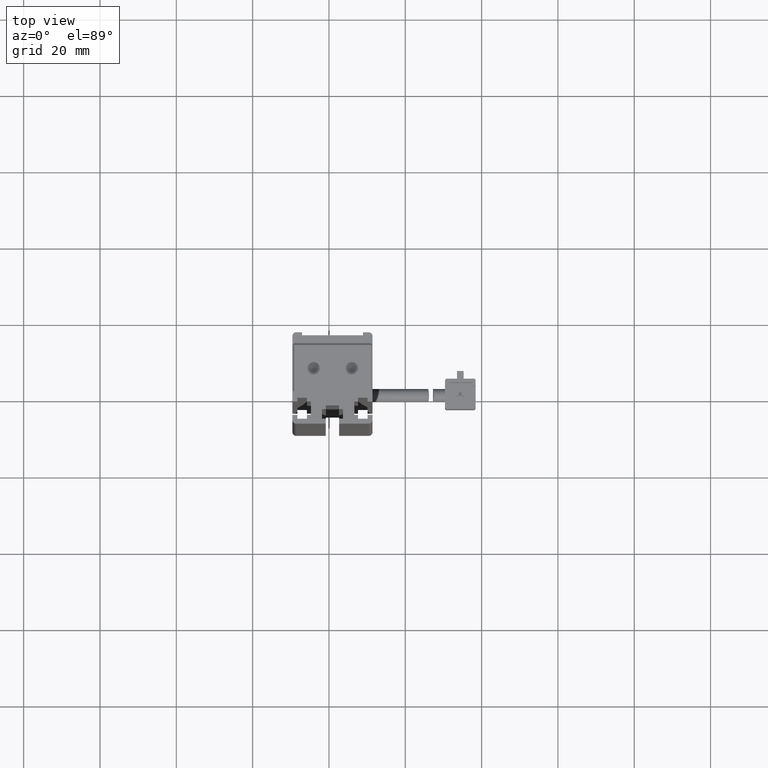
[diagram: clean part render]
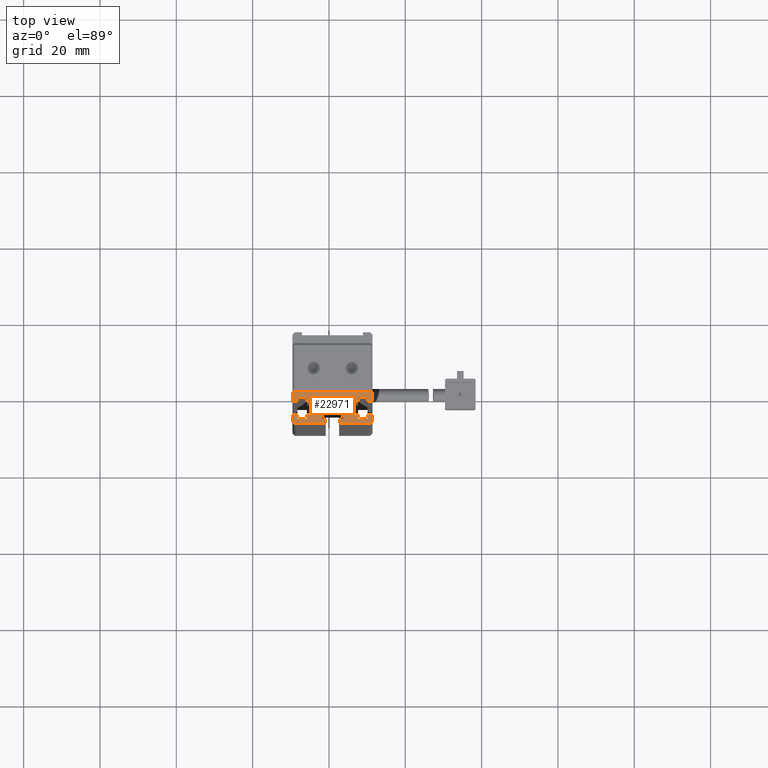
[diagram: same view with one face highlighted and labeled with its STEP entity id]
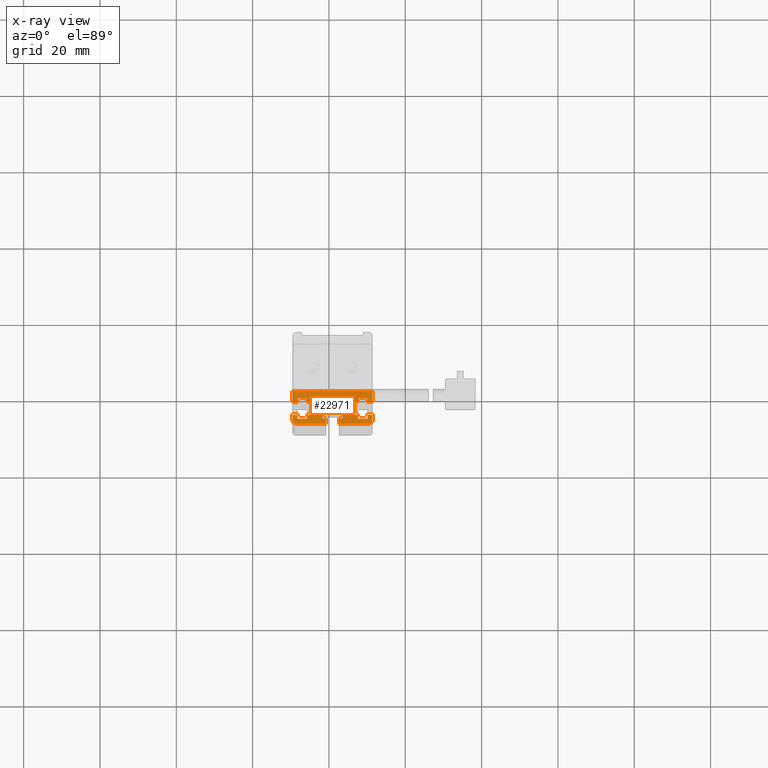
[diagram: x-ray of the same camera — body ghosted, the highlighted face saturated]
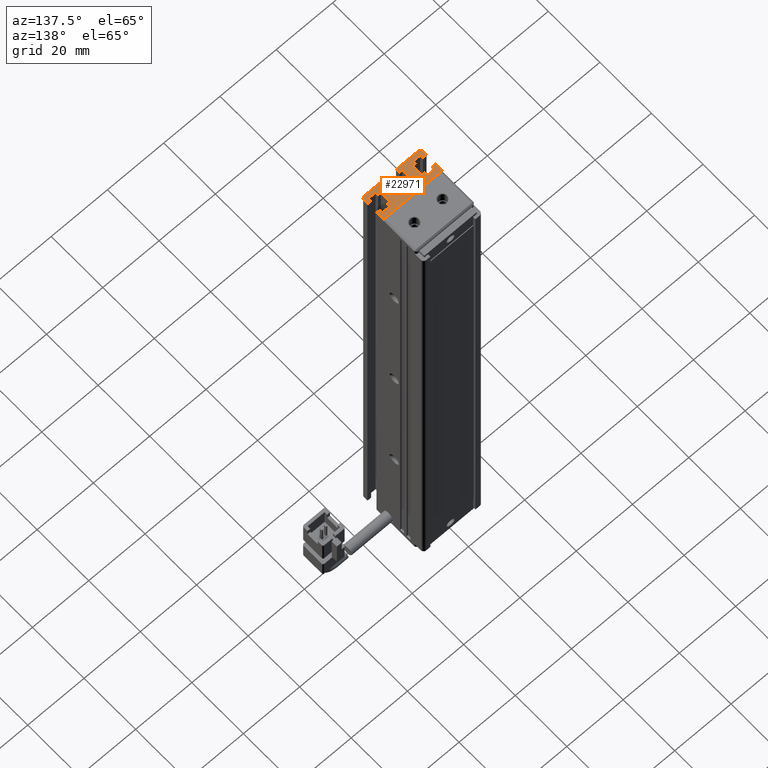
[diagram: same view with one face highlighted and labeled with its STEP entity id]
A machine part, top view. The second image highlights one B-rep face of the part: STEP entity #22971.
The next image is the same camera in x-ray: the body ghosted, the highlighted face saturated — about 0% of this face is hidden behind the body in this view.
A second angle (auxiliary view) of the same face is appended — the face is thin or edge-on in the first view.
In plain terms, the highlighted planar face has unit normal (-0, 0, 1).
Its self-contained STEP definition (entity closure, byte-faithful):
#81 = VECTOR ( 'NONE', #12525, 1000.000000000000000 ) ;
#255 = ORIENTED_EDGE ( 'NONE', *, *, #516, .F. ) ;
#405 = VECTOR ( 'NONE', #27981, 1000.000000000000000 ) ;
#461 = CARTESIAN_POINT ( 'NONE',  ( 46.62537974683541400, 13.29073232304837200, -23.00000000000000700 ) ) ;
#516 = EDGE_CURVE ( 'NONE', #40643, #28890, #14226, .T. ) ;
#569 = VERTEX_POINT ( 'NONE', #39045 ) ;
#603 = CARTESIAN_POINT ( 'NONE',  ( 40.92537974683542500, 16.79073232304837400, -23.00000000000000700 ) ) ;
#746 = VECTOR ( 'NONE', #36741, 1000.000000000000000 ) ;
#994 = VERTEX_POINT ( 'NONE', #19793 ) ;
#1074 = VERTEX_POINT ( 'NONE', #1736 ) ;
#1141 = LINE ( 'NONE', #33958, #48554 ) ;
#1291 = LINE ( 'NONE', #4426, #26485 ) ;
#1339 = LINE ( 'NONE', #38464, #3724 ) ;
#1553 = LINE ( 'NONE', #44837, #22121 ) ;
#1585 = CARTESIAN_POINT ( 'NONE',  ( 39.17537974683542500, 14.79073232304837000, -23.00000000000000700 ) ) ;
#1617 = LINE ( 'NONE', #45082, #22815 ) ;
#1646 = ORIENTED_EDGE ( 'NONE', *, *, #32442, .T. ) ;
#1736 = CARTESIAN_POINT ( 'NONE',  ( 39.17537974683542500, 10.99073232304837000, -22.99999999999999300 ) ) ;
#1949 = VECTOR ( 'NONE', #15186, 1000.000000000000000 ) ;
#2012 = LINE ( 'NONE', #27708, #28386 ) ;
#2191 = ORIENTED_EDGE ( 'NONE', *, *, #17486, .F. ) ;
#2255 = VERTEX_POINT ( 'NONE', #13155 ) ;
#2545 = ORIENTED_EDGE ( 'NONE', *, *, #20505, .T. ) ;
#2726 = CARTESIAN_POINT ( 'NONE',  ( 43.67537974683542500, 7.083797468354437600, -23.00000000000000700 ) ) ;
#2841 = CARTESIAN_POINT ( 'NONE',  ( 35.22537974683543600, 7.083797468354437600, -23.00000000000000700 ) ) ;
#2876 = CARTESIAN_POINT ( 'NONE',  ( 42.67537974683542500, 14.79073232304837000, -23.00000000000000700 ) ) ;
#3158 = ORIENTED_EDGE ( 'NONE', *, *, #29188, .F. ) ;
#3289 = EDGE_CURVE ( 'NONE', #34741, #38159, #41148, .T. ) ;
#3335 = VECTOR ( 'NONE', #5353, 1000.000000000000000 ) ;
#3464 = VERTEX_POINT ( 'NONE', #41321 ) ;
#3661 = VERTEX_POINT ( 'NONE', #31108 ) ;
#3724 = VECTOR ( 'NONE', #22821, 1000.000000000000000 ) ;
#3887 = LINE ( 'NONE', #43982, #43107 ) ;
#3929 = VERTEX_POINT ( 'NONE', #2876 ) ;
#4144 = EDGE_CURVE ( 'NONE', #7402, #35808, #28093, .T. ) ;
#4426 = CARTESIAN_POINT ( 'NONE',  ( 40.92537974683542500, 17.79073232304837000, -23.00000000000000700 ) ) ;
#4937 = LINE ( 'NONE', #5234, #31323 ) ;
#5234 = CARTESIAN_POINT ( 'NONE',  ( 42.67537974683542500, 7.083797468354437600, -23.00000000000000700 ) ) ;
#5353 = DIRECTION ( 'NONE',  ( -0.0000000000000000000, -1.000000000000000000, -0.0000000000000000000 ) ) ;
#5370 = LINE ( 'NONE', #38183, #44006 ) ;
#5428 = EDGE_CURVE ( 'NONE', #15275, #11393, #13526, .T. ) ;
#5445 = DIRECTION ( 'NONE',  ( -1.000000000000000000, 1.734723475976807100E-015, -0.0000000000000000000 ) ) ;
#5455 = DIRECTION ( 'NONE',  ( 1.000000000000000000, 0.0000000000000000000, 0.0000000000000000000 ) ) ;
#5565 = CARTESIAN_POINT ( 'NONE',  ( 31.72537974683542600, 16.79073232304837400, -22.99999999999999300 ) ) ;
#5787 = DIRECTION ( 'NONE',  ( 3.469446951953635100E-015, -1.000000000000000000, -0.0000000000000000000 ) ) ;
#5988 = ORIENTED_EDGE ( 'NONE', *, *, #38514, .T. ) ;
#6232 = CARTESIAN_POINT ( 'NONE',  ( 50.12537974683542800, 16.79073232304837000, -22.99999999999999300 ) ) ;
#6672 = CARTESIAN_POINT ( 'NONE',  ( 30.42537974683542100, 13.29073232304837200, -22.99999999999999300 ) ) ;
#6720 = DIRECTION ( 'NONE',  ( 3.469446951953607900E-015, 1.000000000000000000, -0.0000000000000000000 ) ) ;
#6740 = DIRECTION ( 'NONE',  ( 0.0000000000000000000, 1.000000000000000000, -0.0000000000000000000 ) ) ;
#6744 = EDGE_CURVE ( 'NONE', #3661, #33227, #12092, .T. ) ;
#6827 = CARTESIAN_POINT ( 'NONE',  ( 40.92537974683542500, 12.29073232304837200, -23.00000000000000700 ) ) ;
#7179 = VECTOR ( 'NONE', #27652, 1000.000000000000000 ) ;
#7245 = EDGE_CURVE ( 'NONE', #569, #25813, #38269, .T. ) ;
#7402 = VERTEX_POINT ( 'NONE', #35409 ) ;
#7619 = VERTEX_POINT ( 'NONE', #33253 ) ;
#7695 = CARTESIAN_POINT ( 'NONE',  ( 40.92537974683543900, 16.79073232304836000, -23.00000000000000700 ) ) ;
#7977 = CARTESIAN_POINT ( 'NONE',  ( 40.92537974683543900, 13.29073232304835500, -23.00000000000000700 ) ) ;
#8118 = DIRECTION ( 'NONE',  ( -1.000000000000000000, 0.0000000000000000000, 0.0000000000000000000 ) ) ;
#8128 = CARTESIAN_POINT ( 'NONE',  ( 34.22537974683543600, 16.79073232304837400, -23.00000000000000700 ) ) ;
#8168 = LINE ( 'NONE', #24782, #46750 ) ;
#8199 = CARTESIAN_POINT ( 'NONE',  ( 47.62537974683541400, 12.29073232304837200, -23.00000000000000700 ) ) ;
#8272 = LINE ( 'NONE', #2726, #31707 ) ;
#8360 = LINE ( 'NONE', #9200, #7179 ) ;
#8829 = EDGE_CURVE ( 'NONE', #25671, #1074, #8168, .T. ) ;
#8832 = CARTESIAN_POINT ( 'NONE',  ( 35.22537974683543600, 16.79073232304837400, -23.00000000000000700 ) ) ;
#8858 = ORIENTED_EDGE ( 'NONE', *, *, #24646, .T. ) ;
#9200 = CARTESIAN_POINT ( 'NONE',  ( 31.72537974683539000, 7.083797468354469600, -23.00000000000000700 ) ) ;
#9210 = ORIENTED_EDGE ( 'NONE', *, *, #5428, .T. ) ;
#9238 = AXIS2_PLACEMENT_3D ( 'NONE', #25258, #40277, #10593 ) ;
#9258 = DIRECTION ( 'NONE',  ( 1.000000000000000000, 0.0000000000000000000, 0.0000000000000000000 ) ) ;
#9264 = LINE ( 'NONE', #39534, #44327 ) ;
#9300 = ORIENTED_EDGE ( 'NONE', *, *, #4144, .F. ) ;
#9566 = CARTESIAN_POINT ( 'NONE',  ( 31.72537974683542600, 13.29073232304837200, -23.00000000000000700 ) ) ;
#9738 = CARTESIAN_POINT ( 'NONE',  ( 38.17537974683542500, 14.79073232304837000, -23.00000000000000700 ) ) ;
#9827 = VERTEX_POINT ( 'NONE', #1585 ) ;
#10593 = DIRECTION ( 'NONE',  ( 1.000000000000000000, 0.0000000000000000000, 0.0000000000000000000 ) ) ;
#10849 = VECTOR ( 'NONE', #40586, 1000.000000000000000 ) ;
#10948 = CARTESIAN_POINT ( 'NONE',  ( 39.17537974683542500, 15.79073232304837000, -23.00000000000000700 ) ) ;
#11073 = VECTOR ( 'NONE', #21737, 1000.000000000000000 ) ;
#11082 = CARTESIAN_POINT ( 'NONE',  ( 51.42537974683541800, 11.99073232304837000, -23.00000000000000700 ) ) ;
#11338 = LINE ( 'NONE', #2841, #746 ) ;
#11393 = VERTEX_POINT ( 'NONE', #8128 ) ;
#11470 = CIRCLE ( 'NONE', #26201, 1.000000000000000900 ) ;
#11551 = EDGE_CURVE ( 'NONE', #35808, #36503, #18804, .T. ) ;
#12092 = LINE ( 'NONE', #46653, #47755 ) ;
#12093 = CARTESIAN_POINT ( 'NONE',  ( 31.72537974683542600, 12.29073232304837200, -23.00000000000000700 ) ) ;
#12124 = EDGE_CURVE ( 'NONE', #39472, #29295, #45328, .T. ) ;
#12290 = VERTEX_POINT ( 'NONE', #461 ) ;
#12448 = VERTEX_POINT ( 'NONE', #38888 ) ;
#12491 = DIRECTION ( 'NONE',  ( 1.000000000000000000, 0.0000000000000000000, 0.0000000000000000000 ) ) ;
#12525 = DIRECTION ( 'NONE',  ( 1.000000000000000000, 0.0000000000000000000, 0.0000000000000000000 ) ) ;
#12588 = ORIENTED_EDGE ( 'NONE', *, *, #20875, .F. ) ;
#12777 = VECTOR ( 'NONE', #37389, 1000.000000000000000 ) ;
#12791 = EDGE_CURVE ( 'NONE', #25767, #34741, #46385, .T. ) ;
#12803 = DIRECTION ( 'NONE',  ( -0.0000000000000000000, -1.000000000000000000, -0.0000000000000000000 ) ) ;
#13155 = CARTESIAN_POINT ( 'NONE',  ( 43.67537974683542500, 14.79073232304837000, -23.00000000000000700 ) ) ;
#13204 = VECTOR ( 'NONE', #29493, 1000.000000000000000 ) ;
#13514 = DIRECTION ( 'NONE',  ( 1.000000000000000000, 0.0000000000000000000, -0.0000000000000000000 ) ) ;
#13526 = LINE ( 'NONE', #46487, #45042 ) ;
#13715 = VECTOR ( 'NONE', #32355, 1000.000000000000000 ) ;
#13977 = LINE ( 'NONE', #14855, #12777 ) ;
#14004 = EDGE_CURVE ( 'NONE', #29892, #40133, #29233, .T. ) ;
#14226 = LINE ( 'NONE', #38890, #18265 ) ;
#14504 = EDGE_CURVE ( 'NONE', #47638, #29295, #1553, .T. ) ;
#14658 = VERTEX_POINT ( 'NONE', #5565 ) ;
#14684 = VECTOR ( 'NONE', #6720, 1000.000000000000000 ) ;
#14829 = DIRECTION ( 'NONE',  ( -1.000000000000000000, -0.0000000000000000000, -0.0000000000000000000 ) ) ;
#14855 = CARTESIAN_POINT ( 'NONE',  ( 30.42537974683542100, 7.083797468354437600, -23.00000000000000700 ) ) ;
#14992 = LINE ( 'NONE', #29842, #25899 ) ;
#15157 = DIRECTION ( 'NONE',  ( 3.469446951953607900E-015, -1.000000000000000000, -0.0000000000000000000 ) ) ;
#15160 = ORIENTED_EDGE ( 'NONE', *, *, #46815, .T. ) ;
#15186 = DIRECTION ( 'NONE',  ( -1.000000000000000000, 2.602085213965210200E-015, -0.0000000000000000000 ) ) ;
#15206 = CARTESIAN_POINT ( 'NONE',  ( 51.42537974683541800, 19.49073232304837000, -22.99999999999999300 ) ) ;
#15275 = VERTEX_POINT ( 'NONE', #47201 ) ;
#15304 = LINE ( 'NONE', #23142, #27551 ) ;
#15354 = VECTOR ( 'NONE', #42382, 1000.000000000000000 ) ;
#15467 = ORIENTED_EDGE ( 'NONE', *, *, #3289, .T. ) ;
#15770 = VECTOR ( 'NONE', #47855, 1000.000000000000000 ) ;
#15835 = DIRECTION ( 'NONE',  ( 0.0000000000000000000, 1.000000000000000000, -0.0000000000000000000 ) ) ;
#16211 = ORIENTED_EDGE ( 'NONE', *, *, #23938, .T. ) ;
#16700 = DIRECTION ( 'NONE',  ( -1.000000000000000000, -0.0000000000000000000, -0.0000000000000000000 ) ) ;
#16915 = ORIENTED_EDGE ( 'NONE', *, *, #12791, .T. ) ;
#17251 = VECTOR ( 'NONE', #23589, 1000.000000000000000 ) ;
#17486 = EDGE_CURVE ( 'NONE', #3929, #41469, #20775, .T. ) ;
#17554 = DIRECTION ( 'NONE',  ( -1.000000000000000000, -0.0000000000000000000, -0.0000000000000000000 ) ) ;
#17591 = ORIENTED_EDGE ( 'NONE', *, *, #46315, .F. ) ;
#17680 = EDGE_CURVE ( 'NONE', #12290, #32899, #34223, .T. ) ;
#17951 = CARTESIAN_POINT ( 'NONE',  ( 50.12537974683544900, 7.083797468354469600, -23.00000000000000700 ) ) ;
#18265 = VECTOR ( 'NONE', #16700, 1000.000000000000000 ) ;
#18342 = LINE ( 'NONE', #603, #43453 ) ;
#18612 = LINE ( 'NONE', #35895, #405 ) ;
#18804 = LINE ( 'NONE', #39147, #39830 ) ;
#18850 = CARTESIAN_POINT ( 'NONE',  ( 47.62537974683541400, 13.29073232304837200, -23.00000000000000700 ) ) ;
#18989 = EDGE_CURVE ( 'NONE', #40643, #27003, #18612, .T. ) ;
#19086 = EDGE_CURVE ( 'NONE', #2255, #3929, #3887, .T. ) ;
#19270 = VECTOR ( 'NONE', #33354, 1000.000000000000000 ) ;
#19413 = ORIENTED_EDGE ( 'NONE', *, *, #44933, .T. ) ;
#19431 = CARTESIAN_POINT ( 'NONE',  ( 42.67537974683542500, 15.79073232304837000, -23.00000000000000700 ) ) ;
#19459 = VERTEX_POINT ( 'NONE', #8832 ) ;
#19671 = CARTESIAN_POINT ( 'NONE',  ( 40.92537974683541100, 13.29073232304835500, -23.00000000000000700 ) ) ;
#19793 = CARTESIAN_POINT ( 'NONE',  ( 38.17537974683542500, 12.29073232304837200, -23.00000000000000700 ) ) ;
#19879 = DIRECTION ( 'NONE',  ( -0.0000000000000000000, -0.0000000000000000000, -1.000000000000000000 ) ) ;
#19910 = EDGE_CURVE ( 'NONE', #28803, #25447, #2012, .T. ) ;
#20324 = CARTESIAN_POINT ( 'NONE',  ( 30.42537974683542500, 11.99073232304837000, -23.00000000000000700 ) ) ;
#20505 = EDGE_CURVE ( 'NONE', #3464, #15275, #1291, .T. ) ;
#20607 = EDGE_CURVE ( 'NONE', #14658, #3464, #8360, .T. ) ;
#20677 = CARTESIAN_POINT ( 'NONE',  ( 43.67537974683542500, 12.29073232304837200, -23.00000000000000700 ) ) ;
#20775 = LINE ( 'NONE', #37352, #10849 ) ;
#20875 = EDGE_CURVE ( 'NONE', #25671, #47638, #35820, .T. ) ;
#21011 = EDGE_CURVE ( 'NONE', #47347, #9827, #14992, .T. ) ;
#21104 = EDGE_CURVE ( 'NONE', #994, #47347, #5370, .T. ) ;
#21198 = ORIENTED_EDGE ( 'NONE', *, *, #45210, .T. ) ;
#21494 = DIRECTION ( 'NONE',  ( -0.0000000000000000000, -0.0000000000000000000, -1.000000000000000000 ) ) ;
#21574 = ORIENTED_EDGE ( 'NONE', *, *, #44052, .T. ) ;
#21640 = ORIENTED_EDGE ( 'NONE', *, *, #37839, .F. ) ;
#21737 = DIRECTION ( 'NONE',  ( 3.469446951953610600E-015, -1.000000000000000000, -0.0000000000000000000 ) ) ;
#22121 = VECTOR ( 'NONE', #41380, 1000.000000000000000 ) ;
#22471 = EDGE_CURVE ( 'NONE', #12448, #994, #35683, .T. ) ;
#22815 = VECTOR ( 'NONE', #33412, 1000.000000000000000 ) ;
#22821 = DIRECTION ( 'NONE',  ( 0.0000000000000000000, 1.000000000000000000, -0.0000000000000000000 ) ) ;
#22971 = ADVANCED_FACE ( 'NONE', ( #35592 ), #44201, .T. ) ;
#23142 = CARTESIAN_POINT ( 'NONE',  ( 47.62537974683543500, 7.083797468354461600, -23.00000000000000700 ) ) ;
#23264 = LINE ( 'NONE', #39543, #3335 ) ;
#23377 = EDGE_CURVE ( 'NONE', #28445, #40133, #11470, .T. ) ;
#23589 = DIRECTION ( 'NONE',  ( 1.000000000000000000, 0.0000000000000000000, -0.0000000000000000000 ) ) ;
#23758 = ORIENTED_EDGE ( 'NONE', *, *, #14004, .T. ) ;
#23938 = EDGE_CURVE ( 'NONE', #19459, #25767, #11338, .T. ) ;
#24646 = EDGE_CURVE ( 'NONE', #11393, #19459, #35874, .T. ) ;
#24738 = ORIENTED_EDGE ( 'NONE', *, *, #47393, .T. ) ;
#24782 = CARTESIAN_POINT ( 'NONE',  ( 40.92537974683542500, 10.99073232304837000, -23.00000000000000700 ) ) ;
#25096 = CARTESIAN_POINT ( 'NONE',  ( 40.92537974683542500, 12.29073232304837200, -23.00000000000000700 ) ) ;
#25258 = CARTESIAN_POINT ( 'NONE',  ( 40.92537974683542500, 7.083797468354437600, -23.00000000000000700 ) ) ;
#25447 = VERTEX_POINT ( 'NONE', #43064 ) ;
#25538 = CARTESIAN_POINT ( 'NONE',  ( 46.62537974683541400, 7.083797468354437600, -23.00000000000000700 ) ) ;
#25671 = VERTEX_POINT ( 'NONE', #41389 ) ;
#25767 = VERTEX_POINT ( 'NONE', #46622 ) ;
#25813 = VERTEX_POINT ( 'NONE', #20677 ) ;
#25899 = VECTOR ( 'NONE', #38232, 1000.000000000000000 ) ;
#25934 = CARTESIAN_POINT ( 'NONE',  ( 40.92537974683542500, 10.99073232304837000, -23.00000000000000700 ) ) ;
#26201 = AXIS2_PLACEMENT_3D ( 'NONE', #43821, #21494, #47596 ) ;
#26231 = ORIENTED_EDGE ( 'NONE', *, *, #21011, .T. ) ;
#26485 = VECTOR ( 'NONE', #12491, 1000.000000000000000 ) ;
#26734 = VERTEX_POINT ( 'NONE', #39559 ) ;
#27003 = VERTEX_POINT ( 'NONE', #15206 ) ;
#27313 = EDGE_CURVE ( 'NONE', #38159, #37476, #36531, .T. ) ;
#27551 = VECTOR ( 'NONE', #15157, 1000.000000000000000 ) ;
#27638 = ORIENTED_EDGE ( 'NONE', *, *, #23377, .F. ) ;
#27652 = DIRECTION ( 'NONE',  ( 3.469446951953635100E-015, 1.000000000000000000, -0.0000000000000000000 ) ) ;
#27662 = EDGE_CURVE ( 'NONE', #46841, #41469, #45723, .T. ) ;
#27708 = CARTESIAN_POINT ( 'NONE',  ( 40.92537974683542500, 17.79073232304837400, -23.00000000000000700 ) ) ;
#27731 = EDGE_CURVE ( 'NONE', #27003, #7619, #37583, .T. ) ;
#27754 = ORIENTED_EDGE ( 'NONE', *, *, #18989, .T. ) ;
#27981 = DIRECTION ( 'NONE',  ( 0.0000000000000000000, 1.000000000000000000, -0.0000000000000000000 ) ) ;
#27992 = VECTOR ( 'NONE', #6740, 1000.000000000000000 ) ;
#28093 = LINE ( 'NONE', #43979, #14684 ) ;
#28386 = VECTOR ( 'NONE', #9258, 1000.000000000000000 ) ;
#28445 = VERTEX_POINT ( 'NONE', #11082 ) ;
#28803 = VERTEX_POINT ( 'NONE', #47741 ) ;
#28890 = VERTEX_POINT ( 'NONE', #6232 ) ;
#28939 = DIRECTION ( 'NONE',  ( -0.0000000000000000000, -1.000000000000000000, 0.0000000000000000000 ) ) ;
#29047 = CARTESIAN_POINT ( 'NONE',  ( 42.67537974683542500, 10.99073232304837000, -22.99999999999999300 ) ) ;
#29098 = ORIENTED_EDGE ( 'NONE', *, *, #42181, .T. ) ;
#29188 = EDGE_CURVE ( 'NONE', #12448, #1074, #23264, .T. ) ;
#29212 = CARTESIAN_POINT ( 'NONE',  ( 51.42537974683541800, 16.79073232304837000, -22.99999999999999300 ) ) ;
#29233 = LINE ( 'NONE', #25934, #19270 ) ;
#29295 = VERTEX_POINT ( 'NONE', #6672 ) ;
#29390 = ORIENTED_EDGE ( 'NONE', *, *, #19086, .F. ) ;
#29493 = DIRECTION ( 'NONE',  ( -1.000000000000000000, -0.0000000000000000000, -0.0000000000000000000 ) ) ;
#29842 = CARTESIAN_POINT ( 'NONE',  ( 40.92537974683542500, 14.79073232304837000, -23.00000000000000700 ) ) ;
#29892 = VERTEX_POINT ( 'NONE', #29047 ) ;
#29999 = EDGE_LOOP ( 'NONE', ( #15160, #255, #27754, #47318, #40480, #21198, #37322, #2545, #9210, #8858, #16211, #16915, #15467, #36323, #24738, #38595, #40106, #12588, #43584, #3158, #44312, #42937, #26231, #1646, #37970, #2191, #29390, #21574, #44247, #19413, #23758, #27638, #5988, #41111, #9300, #42257, #21640, #40577, #29098, #38222, #17591, #45919 ) ) ;
#30454 = DIRECTION ( 'NONE',  ( 1.000000000000000000, 0.0000000000000000000, 0.0000000000000000000 ) ) ;
#30550 = CARTESIAN_POINT ( 'NONE',  ( 31.42537974683542900, 11.99073232304837000, -23.00000000000000700 ) ) ;
#31108 = CARTESIAN_POINT ( 'NONE',  ( 47.62537974683541400, 16.79073232304837000, -23.00000000000000700 ) ) ;
#31284 = VECTOR ( 'NONE', #33320, 1000.000000000000000 ) ;
#31323 = VECTOR ( 'NONE', #12803, 1000.000000000000000 ) ;
#31340 = CARTESIAN_POINT ( 'NONE',  ( 40.92537974683542500, 15.79073232304837000, -23.00000000000000700 ) ) ;
#31707 = VECTOR ( 'NONE', #28939, 1000.000000000000000 ) ;
#32355 = DIRECTION ( 'NONE',  ( -1.000000000000000000, -0.0000000000000000000, -0.0000000000000000000 ) ) ;
#32387 = DIRECTION ( 'NONE',  ( 1.334402673828310700E-015, 1.000000000000000000, -0.0000000000000000000 ) ) ;
#32442 = EDGE_CURVE ( 'NONE', #9827, #46841, #1339, .T. ) ;
#32861 = CARTESIAN_POINT ( 'NONE',  ( 34.22537974683543600, 13.29073232304837200, -23.00000000000000700 ) ) ;
#32899 = VERTEX_POINT ( 'NONE', #18850 ) ;
#33227 = VERTEX_POINT ( 'NONE', #39049 ) ;
#33253 = CARTESIAN_POINT ( 'NONE',  ( 30.42537974683542100, 19.49073232304837000, -22.99999999999999300 ) ) ;
#33320 = DIRECTION ( 'NONE',  ( -3.469446951953607900E-015, -1.000000000000000000, -0.0000000000000000000 ) ) ;
#33354 = DIRECTION ( 'NONE',  ( 1.000000000000000000, 0.0000000000000000000, 0.0000000000000000000 ) ) ;
#33412 = DIRECTION ( 'NONE',  ( -3.469446951953610600E-015, -1.000000000000000000, -0.0000000000000000000 ) ) ;
#33944 = DIRECTION ( 'NONE',  ( 1.000000000000000000, 2.602085213965210200E-015, -0.0000000000000000000 ) ) ;
#33958 = CARTESIAN_POINT ( 'NONE',  ( 40.92537974683542500, 12.29073232304837200, -23.00000000000000700 ) ) ;
#34035 = CARTESIAN_POINT ( 'NONE',  ( 50.12537974683542800, 13.29073232304837200, -23.00000000000000700 ) ) ;
#34223 = LINE ( 'NONE', #19671, #37704 ) ;
#34486 = LINE ( 'NONE', #17951, #11073 ) ;
#34741 = VERTEX_POINT ( 'NONE', #32861 ) ;
#34760 = CARTESIAN_POINT ( 'NONE',  ( 40.92537974683542500, 12.29073232304837200, -23.00000000000000700 ) ) ;
#35409 = CARTESIAN_POINT ( 'NONE',  ( 50.12537974683542800, 12.29073232304837200, -23.00000000000000700 ) ) ;
#35444 = VERTEX_POINT ( 'NONE', #8199 ) ;
#35494 = AXIS2_PLACEMENT_3D ( 'NONE', #30550, #19879, #8118 ) ;
#35592 = FACE_OUTER_BOUND ( 'NONE', #29999, .T. ) ;
#35683 = LINE ( 'NONE', #6827, #15770 ) ;
#35808 = VERTEX_POINT ( 'NONE', #34035 ) ;
#35820 = CIRCLE ( 'NONE', #35494, 1.000000000000000900 ) ;
#35874 = LINE ( 'NONE', #7695, #38699 ) ;
#35895 = CARTESIAN_POINT ( 'NONE',  ( 51.42537974683541800, 7.083797468354437600, -23.00000000000000700 ) ) ;
#36323 = ORIENTED_EDGE ( 'NONE', *, *, #27313, .T. ) ;
#36503 = VERTEX_POINT ( 'NONE', #45641 ) ;
#36531 = LINE ( 'NONE', #25096, #13715 ) ;
#36741 = DIRECTION ( 'NONE',  ( -0.0000000000000000000, -1.000000000000000000, 0.0000000000000000000 ) ) ;
#37065 = CARTESIAN_POINT ( 'NONE',  ( 34.22537974683541500, 7.083797468354461600, -23.00000000000000700 ) ) ;
#37186 = CARTESIAN_POINT ( 'NONE',  ( 31.72537974683544000, 7.083797468354405600, -23.00000000000000700 ) ) ;
#37236 = LINE ( 'NONE', #37186, #39542 ) ;
#37322 = ORIENTED_EDGE ( 'NONE', *, *, #20607, .T. ) ;
#37352 = CARTESIAN_POINT ( 'NONE',  ( 42.67537974683542500, 7.083797468354437600, -23.00000000000000700 ) ) ;
#37389 = DIRECTION ( 'NONE',  ( 0.0000000000000000000, 1.000000000000000000, -0.0000000000000000000 ) ) ;
#37476 = VERTEX_POINT ( 'NONE', #12093 ) ;
#37583 = LINE ( 'NONE', #38622, #15354 ) ;
#37704 = VECTOR ( 'NONE', #33944, 1000.000000000000000 ) ;
#37839 = EDGE_CURVE ( 'NONE', #32899, #35444, #15304, .T. ) ;
#37970 = ORIENTED_EDGE ( 'NONE', *, *, #27662, .T. ) ;
#38159 = VERTEX_POINT ( 'NONE', #47785 ) ;
#38183 = CARTESIAN_POINT ( 'NONE',  ( 38.17537974683542500, 7.083797468354437600, -23.00000000000000700 ) ) ;
#38222 = ORIENTED_EDGE ( 'NONE', *, *, #6744, .F. ) ;
#38232 = DIRECTION ( 'NONE',  ( 1.000000000000000000, 0.0000000000000000000, -0.0000000000000000000 ) ) ;
#38269 = LINE ( 'NONE', #34760, #17251 ) ;
#38464 = CARTESIAN_POINT ( 'NONE',  ( 39.17537974683542500, 7.083797468354437600, -23.00000000000000700 ) ) ;
#38514 = EDGE_CURVE ( 'NONE', #28445, #36503, #9264, .T. ) ;
#38595 = ORIENTED_EDGE ( 'NONE', *, *, #12124, .T. ) ;
#38622 = CARTESIAN_POINT ( 'NONE',  ( 40.92537974683542500, 19.49073232304837000, -23.00000000000000700 ) ) ;
#38699 = VECTOR ( 'NONE', #45405, 1000.000000000000000 ) ;
#38888 = CARTESIAN_POINT ( 'NONE',  ( 39.17537974683542500, 12.29073232304837200, -23.00000000000000700 ) ) ;
#38890 = CARTESIAN_POINT ( 'NONE',  ( 40.92537974683542500, 16.79073232304837000, -23.00000000000000700 ) ) ;
#39045 = CARTESIAN_POINT ( 'NONE',  ( 42.67537974683542500, 12.29073232304837200, -22.99999999999999300 ) ) ;
#39049 = CARTESIAN_POINT ( 'NONE',  ( 46.62537974683541400, 16.79073232304837400, -23.00000000000000700 ) ) ;
#39147 = CARTESIAN_POINT ( 'NONE',  ( 40.92537974683542500, 13.29073232304837200, -23.00000000000000700 ) ) ;
#39472 = VERTEX_POINT ( 'NONE', #9566 ) ;
#39534 = CARTESIAN_POINT ( 'NONE',  ( 51.42537974683541100, 7.083797468354424300, -23.00000000000000700 ) ) ;
#39542 = VECTOR ( 'NONE', #48116, 1000.000000000000000 ) ;
#39543 = CARTESIAN_POINT ( 'NONE',  ( 39.17537974683542500, 7.083797468354437600, -23.00000000000000700 ) ) ;
#39559 = CARTESIAN_POINT ( 'NONE',  ( 30.42537974683542100, 16.79073232304837400, -22.99999999999999300 ) ) ;
#39830 = VECTOR ( 'NONE', #13514, 1000.000000000000000 ) ;
#40106 = ORIENTED_EDGE ( 'NONE', *, *, #14504, .F. ) ;
#40133 = VERTEX_POINT ( 'NONE', #43771 ) ;
#40277 = DIRECTION ( 'NONE',  ( -0.0000000000000000000, 0.0000000000000000000, 1.000000000000000000 ) ) ;
#40480 = ORIENTED_EDGE ( 'NONE', *, *, #46980, .F. ) ;
#40577 = ORIENTED_EDGE ( 'NONE', *, *, #17680, .F. ) ;
#40586 = DIRECTION ( 'NONE',  ( 0.0000000000000000000, 1.000000000000000000, -0.0000000000000000000 ) ) ;
#40643 = VERTEX_POINT ( 'NONE', #29212 ) ;
#40803 = EDGE_CURVE ( 'NONE', #7402, #35444, #1141, .T. ) ;
#41111 = ORIENTED_EDGE ( 'NONE', *, *, #11551, .F. ) ;
#41148 = LINE ( 'NONE', #37065, #31284 ) ;
#41321 = CARTESIAN_POINT ( 'NONE',  ( 31.72537974683542600, 17.79073232304837000, -23.00000000000000700 ) ) ;
#41380 = DIRECTION ( 'NONE',  ( -1.334402673828310700E-015, 1.000000000000000000, -0.0000000000000000000 ) ) ;
#41389 = CARTESIAN_POINT ( 'NONE',  ( 31.42537974683542900, 10.99073232304837000, -23.00000000000000700 ) ) ;
#41469 = VERTEX_POINT ( 'NONE', #19431 ) ;
#42181 = EDGE_CURVE ( 'NONE', #12290, #33227, #47891, .T. ) ;
#42257 = ORIENTED_EDGE ( 'NONE', *, *, #40803, .T. ) ;
#42382 = DIRECTION ( 'NONE',  ( -1.000000000000000000, -0.0000000000000000000, -0.0000000000000000000 ) ) ;
#42937 = ORIENTED_EDGE ( 'NONE', *, *, #21104, .T. ) ;
#43064 = CARTESIAN_POINT ( 'NONE',  ( 50.12537974683542100, 17.79073232304837400, -23.00000000000000700 ) ) ;
#43107 = VECTOR ( 'NONE', #17554, 1000.000000000000000 ) ;
#43453 = VECTOR ( 'NONE', #30454, 1000.000000000000000 ) ;
#43584 = ORIENTED_EDGE ( 'NONE', *, *, #8829, .T. ) ;
#43771 = CARTESIAN_POINT ( 'NONE',  ( 50.42537974683541800, 10.99073232304837000, -23.00000000000000700 ) ) ;
#43821 = CARTESIAN_POINT ( 'NONE',  ( 50.42537974683541800, 11.99073232304837000, -23.00000000000000700 ) ) ;
#43979 = CARTESIAN_POINT ( 'NONE',  ( 50.12537974683540700, 7.083797468354405600, -23.00000000000000700 ) ) ;
#43982 = CARTESIAN_POINT ( 'NONE',  ( 40.92537974683542500, 14.79073232304837000, -23.00000000000000700 ) ) ;
#44006 = VECTOR ( 'NONE', #15835, 1000.000000000000000 ) ;
#44052 = EDGE_CURVE ( 'NONE', #2255, #25813, #8272, .T. ) ;
#44201 = PLANE ( 'NONE',  #9238 ) ;
#44247 = ORIENTED_EDGE ( 'NONE', *, *, #7245, .F. ) ;
#44312 = ORIENTED_EDGE ( 'NONE', *, *, #22471, .T. ) ;
#44327 = VECTOR ( 'NONE', #32387, 1000.000000000000000 ) ;
#44837 = CARTESIAN_POINT ( 'NONE',  ( 30.42537974683543200, 7.083797468354424300, -23.00000000000000700 ) ) ;
#44933 = EDGE_CURVE ( 'NONE', #569, #29892, #4937, .T. ) ;
#45042 = VECTOR ( 'NONE', #5787, 1000.000000000000000 ) ;
#45082 = CARTESIAN_POINT ( 'NONE',  ( 47.62537974683537800, 7.083797468354414500, -23.00000000000000700 ) ) ;
#45210 = EDGE_CURVE ( 'NONE', #26734, #14658, #18342, .T. ) ;
#45328 = LINE ( 'NONE', #47770, #13204 ) ;
#45405 = DIRECTION ( 'NONE',  ( 1.000000000000000000, -1.734723475976807100E-015, -0.0000000000000000000 ) ) ;
#45641 = CARTESIAN_POINT ( 'NONE',  ( 51.42537974683541800, 13.29073232304837200, -23.00000000000000700 ) ) ;
#45723 = LINE ( 'NONE', #31340, #81 ) ;
#45919 = ORIENTED_EDGE ( 'NONE', *, *, #19910, .T. ) ;
#46315 = EDGE_CURVE ( 'NONE', #28803, #3661, #1617, .T. ) ;
#46385 = LINE ( 'NONE', #7977, #1949 ) ;
#46487 = CARTESIAN_POINT ( 'NONE',  ( 34.22537974683547200, 7.083797468354414500, -23.00000000000000700 ) ) ;
#46622 = CARTESIAN_POINT ( 'NONE',  ( 35.22537974683543600, 13.29073232304837000, -23.00000000000000700 ) ) ;
#46653 = CARTESIAN_POINT ( 'NONE',  ( 40.92537974683543900, 16.79073232304838100, -23.00000000000000700 ) ) ;
#46750 = VECTOR ( 'NONE', #5455, 1000.000000000000000 ) ;
#46815 = EDGE_CURVE ( 'NONE', #25447, #28890, #34486, .T. ) ;
#46841 = VERTEX_POINT ( 'NONE', #10948 ) ;
#46980 = EDGE_CURVE ( 'NONE', #26734, #7619, #13977, .T. ) ;
#47201 = CARTESIAN_POINT ( 'NONE',  ( 34.22537974683542900, 17.79073232304837000, -23.00000000000000700 ) ) ;
#47318 = ORIENTED_EDGE ( 'NONE', *, *, #27731, .T. ) ;
#47347 = VERTEX_POINT ( 'NONE', #9738 ) ;
#47393 = EDGE_CURVE ( 'NONE', #37476, #39472, #37236, .T. ) ;
#47596 = DIRECTION ( 'NONE',  ( -1.000000000000000000, 0.0000000000000000000, 0.0000000000000000000 ) ) ;
#47638 = VERTEX_POINT ( 'NONE', #20324 ) ;
#47741 = CARTESIAN_POINT ( 'NONE',  ( 47.62537974683541400, 17.79073232304837400, -23.00000000000000700 ) ) ;
#47755 = VECTOR ( 'NONE', #5445, 1000.000000000000000 ) ;
#47770 = CARTESIAN_POINT ( 'NONE',  ( 40.92537974683542500, 13.29073232304837200, -23.00000000000000700 ) ) ;
#47785 = CARTESIAN_POINT ( 'NONE',  ( 34.22537974683542900, 12.29073232304837200, -23.00000000000000700 ) ) ;
#47855 = DIRECTION ( 'NONE',  ( -1.000000000000000000, -0.0000000000000000000, -0.0000000000000000000 ) ) ;
#47891 = LINE ( 'NONE', #25538, #27992 ) ;
#48116 = DIRECTION ( 'NONE',  ( -3.469446951953607900E-015, 1.000000000000000000, -0.0000000000000000000 ) ) ;
#48554 = VECTOR ( 'NONE', #14829, 1000.000000000000000 ) ;